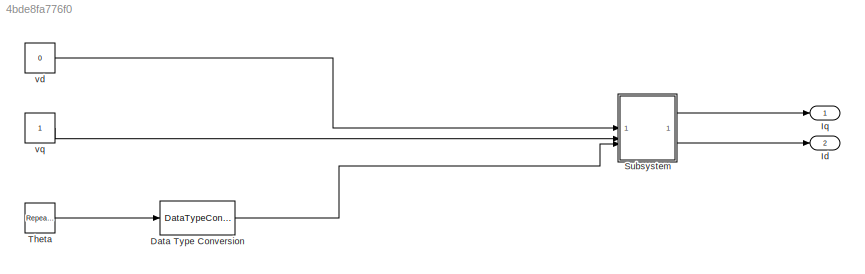
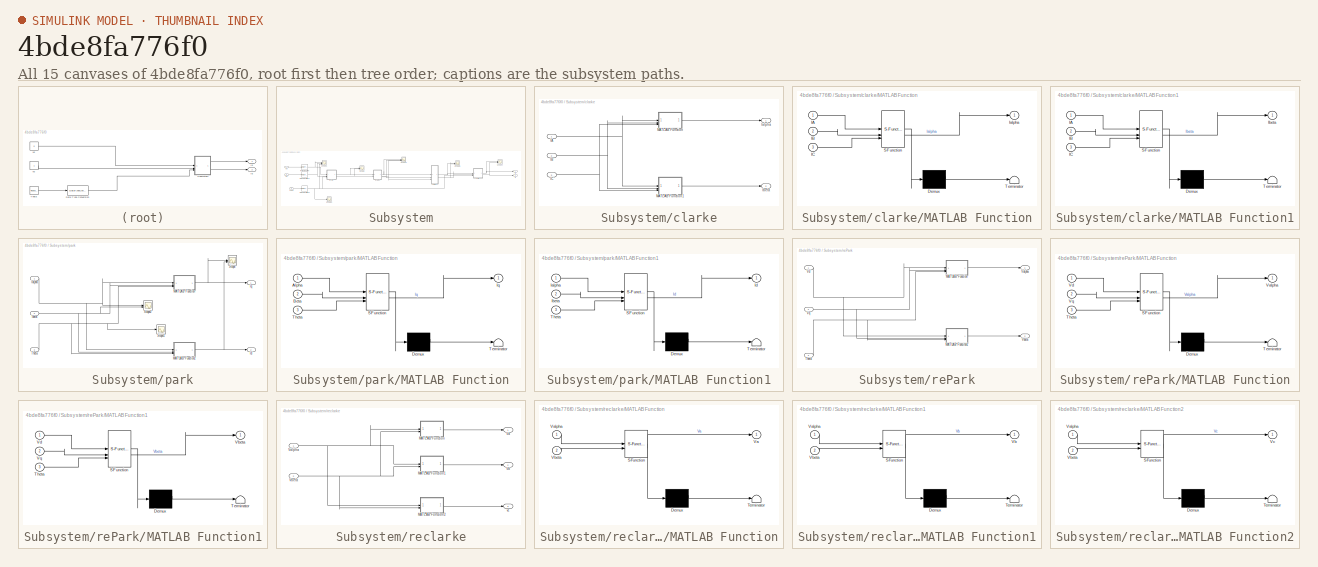
[diagram: thumbnail index - all 15 canvases of the model, root first then tree order]
MODEL slx_4bde8fa776f0
KIND model
CONFIG AbsTol = auto
CONFIG EnableMultiTasking = off
CONFIG FixedStep = auto
CONFIG MaxStep = auto
CONFIG MinStep = auto
CONFIG RelTol = 1e-3
CONFIG SampleTimeConstraint = Unconstrained
CONFIG SolverName = VariableStepAuto
CONFIG StartTime = 0.0
CONFIG StopTime = 0.16
BLOCK [DataTypeConversion] Data Type Conversion
  OutDataTypeStr = single
  RndMeth = Floor
  SaturateOnIntegerOverflow = off
BLOCK [Outport] Id
  Port = 2
BLOCK [Outport] Iq
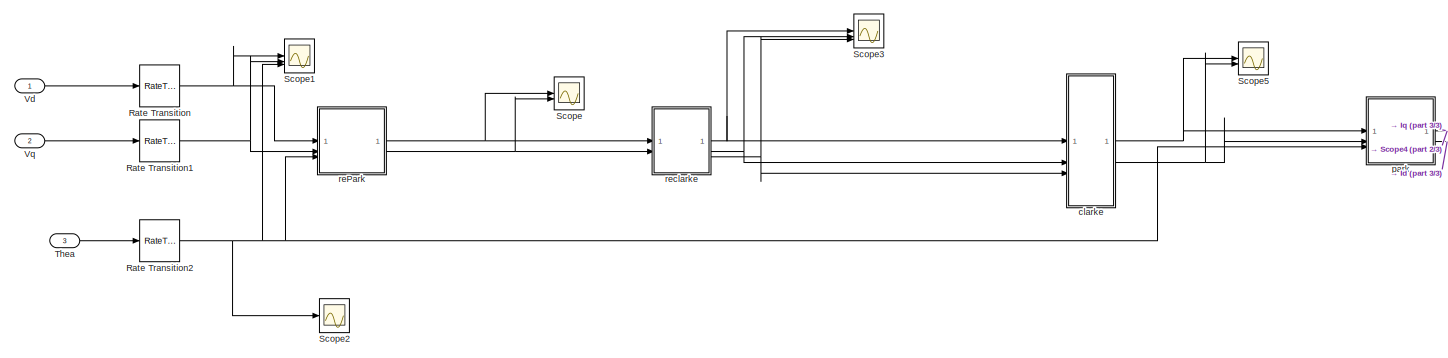
[diagram: Subsystem - part 1/3, most of the canvas]
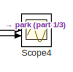
[diagram: Subsystem - part 2/3, top right region]
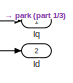
[diagram: Subsystem - part 3/3, middle right region]
BLOCK [SubSystem] Subsystem
BLOCK [Outport] Subsystem/Id
  Port = 2
BLOCK [Outport] Subsystem/Iq
BLOCK [RateTransition] Subsystem/Rate Transition
BLOCK [RateTransition] Subsystem/Rate Transition1
BLOCK [RateTransition] Subsystem/Rate Transition2
BLOCK [Scope] Subsystem/Scope
  Floating = off
  NumInputPorts = 2
  ScopeSpecificationString = Simulink.scopes.TimeScopeBlockCfg('CurrentConfiguration', extmgr.ConfigurationSet(extmgr.Configuration('Core','General UI',true),extmgr.Configuration('Core','Source UI',true),extmgr.Configuration('Sources','WiredSimulink',true,'SampleTime','1e-6'),extmgr.Configuration('Visuals','Time Domain',true,'SerializedDisplays',{struct('MinYLimReal','-1.25','MaxYLimReal','1.25','YLabelReal','','MinYLimMag','...<+1497ch>
BLOCK [Scope] Subsystem/Scope1
  Floating = off
  NumInputPorts = 3
  ScopeSpecificationString = Simulink.scopes.TimeScopeBlockCfg('CurrentConfiguration', extmgr.ConfigurationSet(extmgr.Configuration('Core','General UI',true),extmgr.Configuration('Core','Source UI',true),extmgr.Configuration('Sources','WiredSimulink',true,'DataLoggingVariableName','ScopeData1'),extmgr.Configuration('Visuals','Time Domain',true,'SerializedDisplays',{struct('MinYLimReal','-44.99955','MaxYLimReal','404.99595','Y...<+1540ch>
BLOCK [Scope] Subsystem/Scope2
  Floating = off
  NumInputPorts = 1
  ScopeSpecificationString = Simulink.scopes.TimeScopeBlockCfg('CurrentConfiguration', extmgr.ConfigurationSet(extmgr.Configuration('Core','General UI',true),extmgr.Configuration('Core','Source UI',true),extmgr.Configuration('Sources','WiredSimulink',true,'DataLoggingVariableName','ScopeData2','SampleTime','1e-6'),extmgr.Configuration('Visuals','Time Domain',true,'SerializedDisplays',{struct('MinYLimReal','-44.99955','MaxYLim...<+1457ch>
BLOCK [Scope] Subsystem/Scope3
  Floating = off
  NumInputPorts = 3
  ScopeSpecificationString = Simulink.scopes.TimeScopeBlockCfg('CurrentConfiguration', extmgr.ConfigurationSet(extmgr.Configuration('Core','General UI',true),extmgr.Configuration('Core','Source UI',true),extmgr.Configuration('Sources','WiredSimulink',true,'SampleTime','1e-6','DataLoggingVariableName','ScopeData3'),extmgr.Configuration('Visuals','Time Domain',true,'SerializedDisplays',{struct('MinYLimReal','-1.25','MaxYLimReal...<+1496ch>
BLOCK [Scope] Subsystem/Scope4
  Floating = off
  NumInputPorts = 2
  ScopeSpecificationString = Simulink.scopes.TimeScopeBlockCfg('CurrentConfiguration', extmgr.ConfigurationSet(extmgr.Configuration('Core','General UI',true),extmgr.Configuration('Core','Source UI',true),extmgr.Configuration('Sources','WiredSimulink',true,'SampleTime','1e-6','DataLoggingVariableName','ScopeData4'),extmgr.Configuration('Visuals','Time Domain',true,'SerializedDisplays',{struct('MinYLimReal','-1.875','MaxYLimRea...<+1523ch>
BLOCK [Scope] Subsystem/Scope5
  Floating = off
  NumInputPorts = 2
  ScopeSpecificationString = Simulink.scopes.TimeScopeBlockCfg('CurrentConfiguration', extmgr.ConfigurationSet(extmgr.Configuration('Core','General UI',true),extmgr.Configuration('Core','Source UI',true),extmgr.Configuration('Sources','WiredSimulink',true,'SampleTime','1e-6','DataLoggingVariableName','ScopeData5'),extmgr.Configuration('Visuals','Time Domain',true,'SerializedDisplays',{struct('MinYLimReal','-1.25','MaxYLimReal...<+1542ch>
BLOCK [Inport] Subsystem/Thea
  Port = 3
BLOCK [Inport] Subsystem/Vd
BLOCK [Inport] Subsystem/Vq
  Port = 2
BLOCK [SubSystem] Subsystem/clarke
BLOCK [Inport] Subsystem/clarke/IA
BLOCK [Inport] Subsystem/clarke/IB
  Port = 2
BLOCK [Inport] Subsystem/clarke/IC
  Port = 3
BLOCK [Outport] Subsystem/clarke/Ialpha
BLOCK [Outport] Subsystem/clarke/Ibeta
  Port = 2
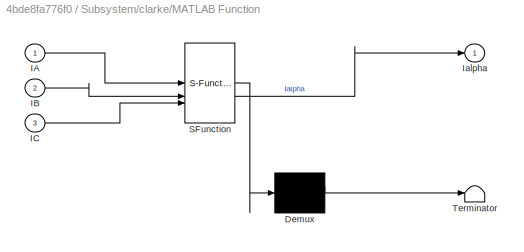
BLOCK [SubSystem] Subsystem/clarke/MATLAB Function
  ErrorFcn = Stateflow.Translate.translate
  LibrarySourceBlock = simulink/User-Defined\nFunctions/MATLAB Function
  PermitHierarchicalResolution = ExplicitOnly
  SFBlockType = MATLAB Function
  TreatAsAtomicUnit = on
BLOCK [Demux] Subsystem/clarke/MATLAB Function/ Demux 
  Outputs = 1
BLOCK [S-Function] Subsystem/clarke/MATLAB Function/ SFunction 
  EnableBusSupport = on
  FunctionName = sf_sfun
  PortCounts = [3 2]
  SFcnIsStateOwnerBlock = off
  SFunctionDeploymentMode = off
  Tag = Stateflow S-Function 6
BLOCK [Terminator] Subsystem/clarke/MATLAB Function/ Terminator 
BLOCK [Inport] Subsystem/clarke/MATLAB Function/IA
BLOCK [Inport] Subsystem/clarke/MATLAB Function/IB
  Port = 2
BLOCK [Inport] Subsystem/clarke/MATLAB Function/IC
  Port = 3
BLOCK [Outport] Subsystem/clarke/MATLAB Function/Ialpha
BLOCK [SubSystem] Subsystem/clarke/MATLAB Function1
  ErrorFcn = Stateflow.Translate.translate
  LibrarySourceBlock = simulink/User-Defined\nFunctions/MATLAB Function
  PermitHierarchicalResolution = ExplicitOnly
  SFBlockType = MATLAB Function
  TreatAsAtomicUnit = on
BLOCK [Demux] Subsystem/clarke/MATLAB Function1/ Demux 
  Outputs = 1
BLOCK [S-Function] Subsystem/clarke/MATLAB Function1/ SFunction 
  EnableBusSupport = on
  FunctionName = sf_sfun
  PortCounts = [3 2]
  SFcnIsStateOwnerBlock = off
  SFunctionDeploymentMode = off
  Tag = Stateflow S-Function 7
BLOCK [Terminator] Subsystem/clarke/MATLAB Function1/ Terminator 
BLOCK [Inport] Subsystem/clarke/MATLAB Function1/IA
BLOCK [Inport] Subsystem/clarke/MATLAB Function1/IB
  Port = 2
BLOCK [Inport] Subsystem/clarke/MATLAB Function1/IC
  Port = 3
BLOCK [Outport] Subsystem/clarke/MATLAB Function1/Ibeta
BLOCK [SubSystem] Subsystem/park
BLOCK [Inport] Subsystem/park/Ialpha
BLOCK [Inport] Subsystem/park/Ibeta
  Port = 2
BLOCK [Outport] Subsystem/park/Id
  Port = 2
BLOCK [Outport] Subsystem/park/Iq
BLOCK [SubSystem] Subsystem/park/MATLAB Function
  ErrorFcn = Stateflow.Translate.translate
  LibrarySourceBlock = simulink/User-Defined\nFunctions/MATLAB Function
  PermitHierarchicalResolution = ExplicitOnly
  SFBlockType = MATLAB Function
  TreatAsAtomicUnit = on
BLOCK [Demux] Subsystem/park/MATLAB Function/ Demux 
  Outputs = 1
BLOCK [S-Function] Subsystem/park/MATLAB Function/ SFunction 
  EnableBusSupport = on
  FunctionName = sf_sfun
  PortCounts = [3 2]
  SFcnIsStateOwnerBlock = off
  SFunctionDeploymentMode = off
  Tag = Stateflow S-Function 8
BLOCK [Terminator] Subsystem/park/MATLAB Function/ Terminator 
BLOCK [Inport] Subsystem/park/MATLAB Function/Alpha
BLOCK [Inport] Subsystem/park/MATLAB Function/Beta
  Port = 2
BLOCK [Outport] Subsystem/park/MATLAB Function/Iq
BLOCK [Inport] Subsystem/park/MATLAB Function/Theta
  Port = 3
BLOCK [SubSystem] Subsystem/park/MATLAB Function1
  ErrorFcn = Stateflow.Translate.translate
  LibrarySourceBlock = simulink/User-Defined\nFunctions/MATLAB Function
  PermitHierarchicalResolution = ExplicitOnly
  SFBlockType = MATLAB Function
  TreatAsAtomicUnit = on
BLOCK [Demux] Subsystem/park/MATLAB Function1/ Demux 
  Outputs = 1
BLOCK [S-Function] Subsystem/park/MATLAB Function1/ SFunction 
  EnableBusSupport = on
  FunctionName = sf_sfun
  PortCounts = [3 2]
  SFcnIsStateOwnerBlock = off
  SFunctionDeploymentMode = off
  Tag = Stateflow S-Function 9
BLOCK [Terminator] Subsystem/park/MATLAB Function1/ Terminator 
BLOCK [Inport] Subsystem/park/MATLAB Function1/Ialpha
BLOCK [Inport] Subsystem/park/MATLAB Function1/Ibeta
  Port = 2
BLOCK [Outport] Subsystem/park/MATLAB Function1/Id
BLOCK [Inport] Subsystem/park/MATLAB Function1/Theta
  Port = 3
BLOCK [Scope] Subsystem/park/Scope
  Floating = off
  NumInputPorts = 2
  ScopeSpecificationString = Simulink.scopes.TimeScopeBlockCfg('CurrentConfiguration', extmgr.ConfigurationSet(extmgr.Configuration('Core','General UI',true),extmgr.Configuration('Core','Source UI',true),extmgr.Configuration('Sources','WiredSimulink',true,'DataLoggingVariableName','ScopeData6'),extmgr.Configuration('Visuals','Time Domain',true,'SerializedDisplays',{struct('MinYLimReal','-1.875','MaxYLimReal','1.875','YLabelRe...<+1458ch>
BLOCK [Scope] Subsystem/park/Scope1
  Floating = off
  NumInputPorts = 1
  ScopeSpecificationString = Simulink.scopes.TimeScopeBlockCfg('CurrentConfiguration', extmgr.ConfigurationSet(extmgr.Configuration('Core','General UI',true),extmgr.Configuration('Core','Source UI',true),extmgr.Configuration('Sources','WiredSimulink',true,'DataLoggingVariableName','ScopeData7'),extmgr.Configuration('Visuals','Time Domain',true,'SerializedDisplays',{struct('MinYLimReal','-44.99955','MaxYLimReal','404.99595','Y...<+1451ch>
BLOCK [Scope] Subsystem/park/Scope2
  Floating = off
  NumInputPorts = 2
  ScopeSpecificationString = Simulink.scopes.TimeScopeBlockCfg('CurrentConfiguration', extmgr.ConfigurationSet(extmgr.Configuration('Core','General UI',true),extmgr.Configuration('Core','Source UI',true),extmgr.Configuration('Sources','WiredSimulink',true,'DataLoggingVariableName','ScopeData8','SampleTime','1e-6'),extmgr.Configuration('Visuals','Time Domain',true,'SerializedDisplays',{struct('MinYLimReal','-1.875','MaxYLimRea...<+1456ch>
BLOCK [Inport] Subsystem/park/Theta
  Port = 3
BLOCK [SubSystem] Subsystem/rePark
BLOCK [SubSystem] Subsystem/rePark/MATLAB Function
  ErrorFcn = Stateflow.Translate.translate
  LibrarySourceBlock = simulink/User-Defined\nFunctions/MATLAB Function
  PermitHierarchicalResolution = ExplicitOnly
  SFBlockType = MATLAB Function
  TreatAsAtomicUnit = on
BLOCK [Demux] Subsystem/rePark/MATLAB Function/ Demux 
  Outputs = 1
BLOCK [S-Function] Subsystem/rePark/MATLAB Function/ SFunction 
  EnableBusSupport = on
  FunctionName = sf_sfun
  PortCounts = [3 2]
  SFcnIsStateOwnerBlock = off
  SFunctionDeploymentMode = off
  Tag = Stateflow S-Function 2
BLOCK [Terminator] Subsystem/rePark/MATLAB Function/ Terminator 
BLOCK [Inport] Subsystem/rePark/MATLAB Function/Theta
  Port = 3
BLOCK [Outport] Subsystem/rePark/MATLAB Function/Valpha
BLOCK [Inport] Subsystem/rePark/MATLAB Function/Vd
BLOCK [Inport] Subsystem/rePark/MATLAB Function/Vq
  Port = 2
BLOCK [SubSystem] Subsystem/rePark/MATLAB Function1
  ErrorFcn = Stateflow.Translate.translate
  LibrarySourceBlock = simulink/User-Defined\nFunctions/MATLAB Function
  PermitHierarchicalResolution = ExplicitOnly
  SFBlockType = MATLAB Function
  TreatAsAtomicUnit = on
BLOCK [Demux] Subsystem/rePark/MATLAB Function1/ Demux 
  Outputs = 1
BLOCK [S-Function] Subsystem/rePark/MATLAB Function1/ SFunction 
  EnableBusSupport = on
  FunctionName = sf_sfun
  PortCounts = [3 2]
  SFcnIsStateOwnerBlock = off
  SFunctionDeploymentMode = off
  Tag = Stateflow S-Function 1
BLOCK [Terminator] Subsystem/rePark/MATLAB Function1/ Terminator 
BLOCK [Inport] Subsystem/rePark/MATLAB Function1/Theta
  Port = 3
BLOCK [Outport] Subsystem/rePark/MATLAB Function1/Vbeta
BLOCK [Inport] Subsystem/rePark/MATLAB Function1/Vd
BLOCK [Inport] Subsystem/rePark/MATLAB Function1/Vq
  Port = 2
BLOCK [Inport] Subsystem/rePark/Theta
  Port = 3
BLOCK [Outport] Subsystem/rePark/Valpha
BLOCK [Outport] Subsystem/rePark/Vbeta
  Port = 2
BLOCK [Inport] Subsystem/rePark/Vd
BLOCK [Inport] Subsystem/rePark/Vq
  Port = 2
BLOCK [SubSystem] Subsystem/reclarke
BLOCK [SubSystem] Subsystem/reclarke/MATLAB Function
  ErrorFcn = Stateflow.Translate.translate
  LibrarySourceBlock = simulink/User-Defined\nFunctions/MATLAB Function
  PermitHierarchicalResolution = ExplicitOnly
  SFBlockType = MATLAB Function
  TreatAsAtomicUnit = on
BLOCK [Demux] Subsystem/reclarke/MATLAB Function/ Demux 
  Outputs = 1
BLOCK [S-Function] Subsystem/reclarke/MATLAB Function/ SFunction 
  EnableBusSupport = on
  FunctionName = sf_sfun
  PortCounts = [2 2]
  SFcnIsStateOwnerBlock = off
  SFunctionDeploymentMode = off
  Tag = Stateflow S-Function 3
BLOCK [Terminator] Subsystem/reclarke/MATLAB Function/ Terminator 
BLOCK [Outport] Subsystem/reclarke/MATLAB Function/Va
BLOCK [Inport] Subsystem/reclarke/MATLAB Function/Valpha
BLOCK [Inport] Subsystem/reclarke/MATLAB Function/Vbeta
  Port = 2
BLOCK [SubSystem] Subsystem/reclarke/MATLAB Function1
  ErrorFcn = Stateflow.Translate.translate
  LibrarySourceBlock = simulink/User-Defined\nFunctions/MATLAB Function
  PermitHierarchicalResolution = ExplicitOnly
  SFBlockType = MATLAB Function
  TreatAsAtomicUnit = on
BLOCK [Demux] Subsystem/reclarke/MATLAB Function1/ Demux 
  Outputs = 1
BLOCK [S-Function] Subsystem/reclarke/MATLAB Function1/ SFunction 
  EnableBusSupport = on
  FunctionName = sf_sfun
  PortCounts = [2 2]
  SFcnIsStateOwnerBlock = off
  SFunctionDeploymentMode = off
  Tag = Stateflow S-Function 4
BLOCK [Terminator] Subsystem/reclarke/MATLAB Function1/ Terminator 
BLOCK [Inport] Subsystem/reclarke/MATLAB Function1/Valpha
BLOCK [Outport] Subsystem/reclarke/MATLAB Function1/Vb
BLOCK [Inport] Subsystem/reclarke/MATLAB Function1/Vbeta
  Port = 2
BLOCK [SubSystem] Subsystem/reclarke/MATLAB Function2
  ErrorFcn = Stateflow.Translate.translate
  LibrarySourceBlock = simulink/User-Defined\nFunctions/MATLAB Function
  PermitHierarchicalResolution = ExplicitOnly
  SFBlockType = MATLAB Function
  TreatAsAtomicUnit = on
BLOCK [Demux] Subsystem/reclarke/MATLAB Function2/ Demux 
  Outputs = 1
BLOCK [S-Function] Subsystem/reclarke/MATLAB Function2/ SFunction 
  EnableBusSupport = on
  FunctionName = sf_sfun
  PortCounts = [2 2]
  SFcnIsStateOwnerBlock = off
  SFunctionDeploymentMode = off
  Tag = Stateflow S-Function 5
BLOCK [Terminator] Subsystem/reclarke/MATLAB Function2/ Terminator 
BLOCK [Inport] Subsystem/reclarke/MATLAB Function2/Valpha
BLOCK [Inport] Subsystem/reclarke/MATLAB Function2/Vbeta
  Port = 2
BLOCK [Outport] Subsystem/reclarke/MATLAB Function2/Vc
BLOCK [Outport] Subsystem/reclarke/Va
BLOCK [Inport] Subsystem/reclarke/Valpha
BLOCK [Outport] Subsystem/reclarke/Vb
  Port = 2
BLOCK [Inport] Subsystem/reclarke/Vbeta
  Port = 2
BLOCK [Outport] Subsystem/reclarke/vc
  Port = 3
BLOCK [Reference] Theta  REF=simulink/Sources/Repeating
Sequence
  SourceBlock = simulink/Sources/Repeating\nSequence
  SourceType = Repeating table
BLOCK [Constant] vd
  OutDataTypeStr = single
  Value = 0
BLOCK [Constant] vq
  OutDataTypeStr = single
LINE Data Type Conversion:1 -> Subsystem:3
NET Subsystem/Rate Transition1:1 -> Subsystem/Scope1:2, Subsystem/rePark:2
NET Subsystem/Rate Transition2:1 -> Subsystem/Scope1:3, Subsystem/Scope2:1, Subsystem/park:3, Subsystem/rePark:3
NET Subsystem/Rate Transition:1 -> Subsystem/Scope1:1, Subsystem/rePark:1
LINE Subsystem/Thea:1 -> Subsystem/Rate Transition2:1
LINE Subsystem/Vd:1 -> Subsystem/Rate Transition:1
LINE Subsystem/Vq:1 -> Subsystem/Rate Transition1:1
NET Subsystem/clarke/IA:1 -> Subsystem/clarke/MATLAB Function1:1, Subsystem/clarke/MATLAB Function:1
NET Subsystem/clarke/IB:1 -> Subsystem/clarke/MATLAB Function1:2, Subsystem/clarke/MATLAB Function:2
NET Subsystem/clarke/IC:1 -> Subsystem/clarke/MATLAB Function1:3, Subsystem/clarke/MATLAB Function:3
LINE Subsystem/clarke/MATLAB Function1:1 -> Subsystem/clarke/Ibeta:1
LINE Subsystem/clarke/MATLAB Function:1 -> Subsystem/clarke/Ialpha:1
NET Subsystem/clarke:1 -> Subsystem/Scope5:1, Subsystem/park:1
NET Subsystem/clarke:2 -> Subsystem/Scope5:2, Subsystem/park:2
NET Subsystem/park/Ialpha:1 -> Subsystem/park/MATLAB Function1:1, Subsystem/park/MATLAB Function:1, Subsystem/park/Scope2:1
NET Subsystem/park/Ibeta:1 -> Subsystem/park/MATLAB Function1:2, Subsystem/park/MATLAB Function:2, Subsystem/park/Scope2:2
NET Subsystem/park/MATLAB Function1:1 -> Subsystem/park/Id:1, Subsystem/park/Scope:2
NET Subsystem/park/MATLAB Function:1 -> Subsystem/park/Iq:1, Subsystem/park/Scope:1
NET Subsystem/park/Theta:1 -> Subsystem/park/MATLAB Function1:3, Subsystem/park/MATLAB Function:3, Subsystem/park/Scope1:1
NET Subsystem/park:1 -> Subsystem/Iq:1, Subsystem/Scope4:1
NET Subsystem/park:2 -> Subsystem/Id:1, Subsystem/Scope4:2
LINE Subsystem/rePark/MATLAB Function1:1 -> Subsystem/rePark/Vbeta:1
LINE Subsystem/rePark/MATLAB Function:1 -> Subsystem/rePark/Valpha:1
NET Subsystem/rePark/Theta:1 -> Subsystem/rePark/MATLAB Function1:3, Subsystem/rePark/MATLAB Function:3
NET Subsystem/rePark/Vd:1 -> Subsystem/rePark/MATLAB Function1:1, Subsystem/rePark/MATLAB Function:1
NET Subsystem/rePark/Vq:1 -> Subsystem/rePark/MATLAB Function1:2, Subsystem/rePark/MATLAB Function:2
NET Subsystem/rePark:1 -> Subsystem/Scope:1, Subsystem/reclarke:1
NET Subsystem/rePark:2 -> Subsystem/Scope:2, Subsystem/reclarke:2
LINE Subsystem/reclarke/MATLAB Function1:1 -> Subsystem/reclarke/Vb:1
LINE Subsystem/reclarke/MATLAB Function2:1 -> Subsystem/reclarke/vc:1
LINE Subsystem/reclarke/MATLAB Function:1 -> Subsystem/reclarke/Va:1
NET Subsystem/reclarke/Valpha:1 -> Subsystem/reclarke/MATLAB Function1:1, Subsystem/reclarke/MATLAB Function2:1, Subsystem/reclarke/MATLAB Function:1
NET Subsystem/reclarke/Vbeta:1 -> Subsystem/reclarke/MATLAB Function1:2, Subsystem/reclarke/MATLAB Function2:2, Subsystem/reclarke/MATLAB Function:2
NET Subsystem/reclarke:1 -> Subsystem/Scope3:1, Subsystem/clarke:1
NET Subsystem/reclarke:2 -> Subsystem/Scope3:2, Subsystem/clarke:2
NET Subsystem/reclarke:3 -> Subsystem/Scope3:3, Subsystem/clarke:3
LINE Subsystem:1 -> Iq:1
LINE Subsystem:2 -> Id:1
LINE Theta:1 -> Data Type Conversion:1
LINE vd:1 -> Subsystem:1
LINE vq:1 -> Subsystem:2
note: NET lines group one-source signal fan-out (src -> all destinations, sorted); 1:1 wires keep LINE
CHART Subsystem/rePark/MATLAB Function1 states=1 transitions=1
  STATE_LABEL 'eML_blk_kernel()'
  STATE_LABEL 'SCRIPT:\nfunction Vbeta = fcn(Vd, Vq, Theta)\n\nVbeta = Vq * cosd(Theta) + Vd * sind(Theta);\n'
CHART Subsystem/rePark/MATLAB Function states=1 transitions=1
  STATE_LABEL 'eML_blk_kernel()'
  STATE_LABEL 'SCRIPT:\nfunction Valpha = fcn(Vd, Vq, Theta)\n\nValpha = -Vq * sind(Theta) + Vd * cosd(Theta);\n'
CHART Subsystem/reclarke/MATLAB Function states=1 transitions=1
  STATE_LABEL 'eML_blk_kernel()'
  STATE_LABEL 'SCRIPT:\nfunction Va = fcn(Valpha, Vbeta)\n\nVa = Valpha;\n'
CHART Subsystem/reclarke/MATLAB Function1 states=1 transitions=1
  STATE_LABEL 'eML_blk_kernel()'
  STATE_LABEL 'SCRIPT:\nfunction Vb = fcn(Valpha, Vbeta)\n\nVb = -Valpha * sind(30) + Vbeta * cosd(30);\n'
CHART Subsystem/reclarke/MATLAB Function2 states=1 transitions=1
  STATE_LABEL 'eML_blk_kernel()'
  STATE_LABEL 'SCRIPT:\nfunction Vc = fcn(Valpha, Vbeta)\n\nVc = -Valpha * sind(30) - Vbeta * cosd(30);\n'
CHART Subsystem/clarke/MATLAB Function states=1 transitions=1
  STATE_LABEL 'eML_blk_kernel()'
  STATE_LABEL 'SCRIPT:\nfunction Ialpha = fcn(IA, IB, IC)\n%Ialpha = IA - (IB + IC) * cosd(60);\nIalpha = IA;'
CHART Subsystem/clarke/MATLAB Function1 states=1 transitions=1
  STATE_LABEL 'eML_blk_kernel()'
  STATE_LABEL 'SCRIPT:\nfunction Ibeta = fcn(IA, IB, IC)\nIbeta = 2/3 *(IB - IC) * cosd(30);\n%Ibeta = (IA + 2*IB) / sqrt(3);'
CHART Subsystem/park/MATLAB Function states=1 transitions=1
  STATE_LABEL 'eML_blk_kernel()'
  STATE_LABEL 'SCRIPT:\nfunction Iq = fcn(Alpha, Beta, Theta)\n\nIq = -Alpha * sind(Theta) + Beta * cosd(Theta);'
CHART Subsystem/park/MATLAB Function1 states=1 transitions=1
  STATE_LABEL 'eML_blk_kernel()'
  STATE_LABEL 'SCRIPT:\nfunction Id = fcn(Ialpha, Ibeta, Theta)\n\nId = Ialpha * cosd(Theta) + Ibeta * sind(Theta);'
CHART  states=0 transitions=0
CHART  states=0 transitions=0
CHART  states=0 transitions=0
CHART  states=0 transitions=0
CHART  states=0 transitions=0
CHART  states=0 transitions=0
CHART  states=0 transitions=0
CHART  states=0 transitions=0
CHART  states=0 transitions=0
